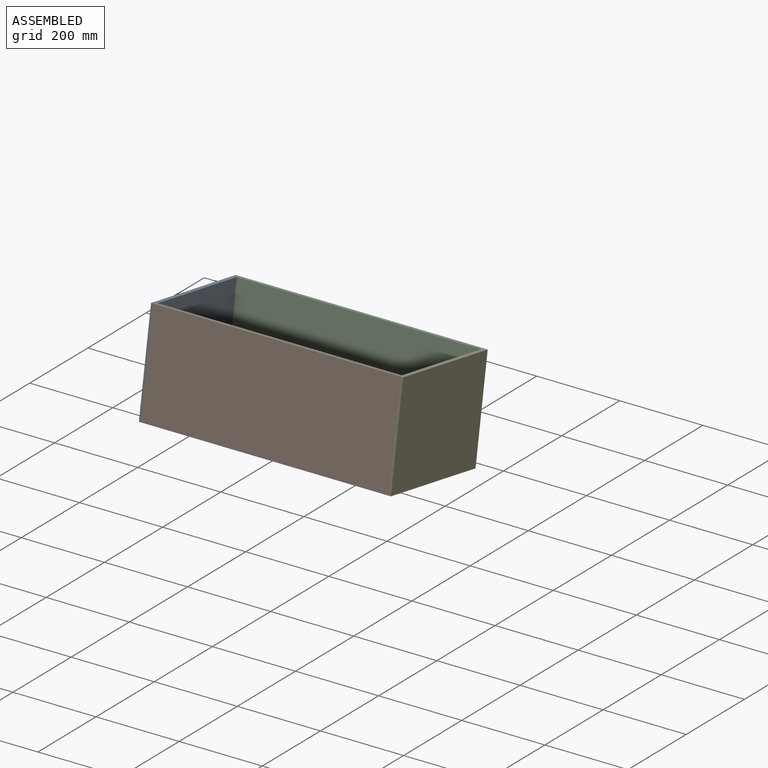
[diagram: assembled view]
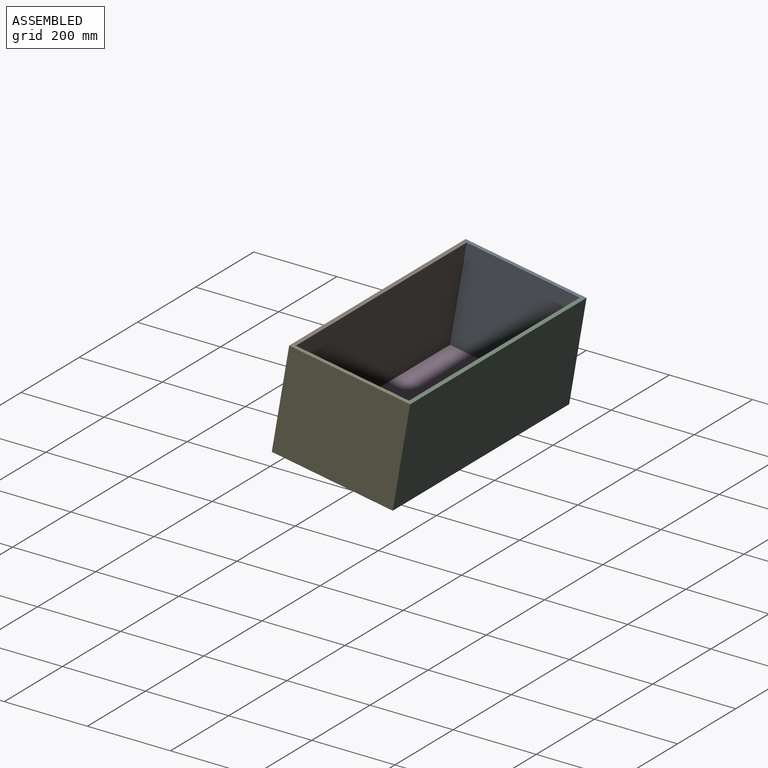
[diagram: assembled view, second angle]
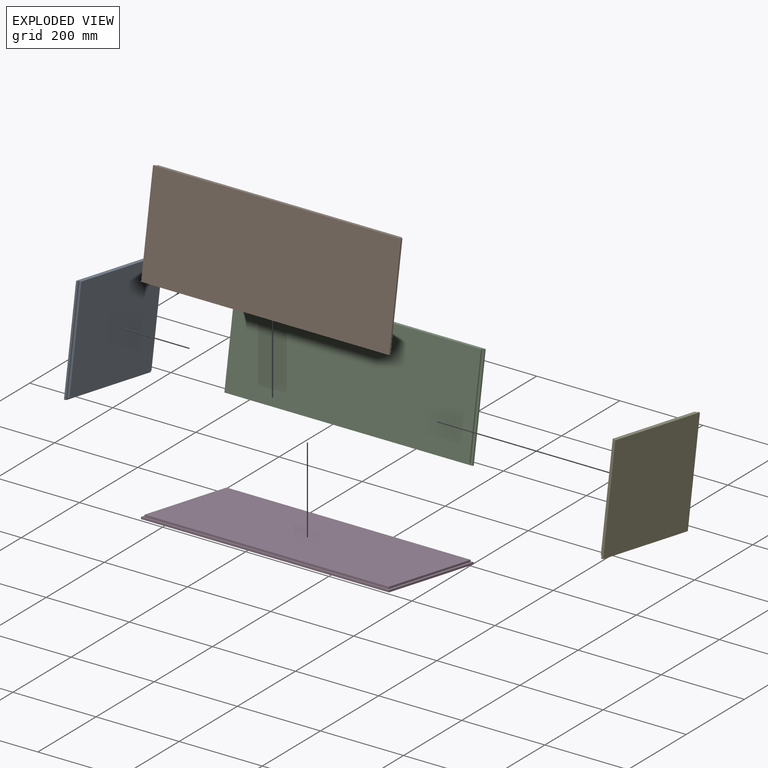
[diagram: exploded view]
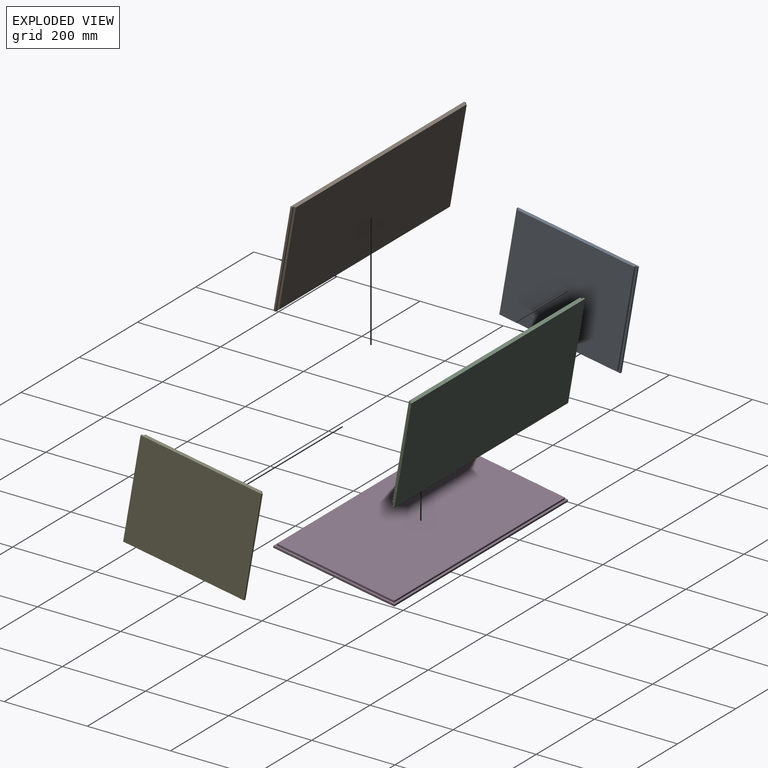
[diagram: exploded view, second angle]
ASSEMBLY  parts=5 mates=4
PART A: 10 faces, bbox 295.3x9.5x246.1 mm
  f0: plane 295.28x246.06mm, normal (0,-1,0), area 3704.6mm2, adj f1,f2,f3,f4,f6,f7,f8
  f1: plane 295.28x4.76mm, normal (0,0,-1), area 1406.2mm2, adj f0,f2,f4,f5
  f2: plane 246.06x4.76mm, normal (1,0,0), area 1171.9mm2, adj f0,f1,f3,f5
  f3: plane 295.28x9.53mm, normal (0,0,1), area 2767.1mm2, adj f0,f2,f4,f5,f6,f8,f9
  f4: plane 246.06x4.76mm, normal (-1,0,0), area 1171.9mm2, adj f0,f1,f3,f5
  f5: plane 295.28x246.06mm, normal (0,1,0), area 72656.1mm2, adj f1,f2,f3,f4
  f6: plane 241.3x4.76mm, normal (-1,0,0), area 1149.2mm2, adj f0,f3,f7,f9
  f7: plane 285.75x4.76mm, normal (0,0,-1), area 1360.9mm2, adj f0,f6,f8,f9
  f8: plane 241.3x4.76mm, normal (1,0,0), area 1149.2mm2, adj f0,f3,f7,f9
  f9: plane 285.75x241.3mm, normal (0,-1,0), area 68951.5mm2, adj f3,f6,f7,f8
PART B: 10 faces, bbox 596.9x9.5x241.3 mm
  f0: plane 596.9x241.3mm, normal (0,-1,0), area 5095.8mm2, adj f1,f2,f3,f4,f6,f7,f8
  f1: plane 596.9x4.76mm, normal (0,0,-1), area 2842.7mm2, adj f0,f2,f4,f5
  f2: plane 241.3x4.76mm, normal (1,0,0), area 1149.2mm2, adj f0,f1,f3,f5
  f3: plane 596.9x9.53mm, normal (0,0,1), area 5640.1mm2, adj f0,f2,f4,f5,f6,f8,f9
  f4: plane 241.3x4.76mm, normal (-1,0,0), area 1149.2mm2, adj f0,f1,f3,f5
  f5: plane 596.9x241.3mm, normal (0,1,0), area 144032mm2, adj f1,f2,f3,f4
  f6: plane 236.54x4.76mm, normal (-1,0,0), area 1126.5mm2, adj f0,f3,f7,f9
  f7: plane 587.38x4.76mm, normal (0,0,-1), area 2797.4mm2, adj f0,f6,f8,f9
  f8: plane 236.54x4.76mm, normal (1,0,0), area 1126.5mm2, adj f0,f3,f7,f9
  f9: plane 587.38x236.54mm, normal (0,-1,0), area 138936.2mm2, adj f3,f6,f7,f8
PART C: same geometry as B
PART D: 11 faces, bbox 596.9x9.5x295.3 mm
  f0: plane 596.9x295.28mm, normal (0,-1,0), area 8407.2mm2, adj f1,f2,f3,f4,f6,f7,f8,f9
  f1: plane 596.9x4.76mm, normal (0,0,-1), area 2842.7mm2, adj f0,f2,f4,f5
  f2: plane 295.28x4.76mm, normal (1,0,0), area 1406.2mm2, adj f0,f1,f3,f5
  f3: plane 596.9x4.76mm, normal (0,0,1), area 2842.7mm2, adj f0,f2,f4,f5
  f4: plane 295.28x4.76mm, normal (-1,0,0), area 1406.2mm2, adj f0,f1,f3,f5
  f5: plane 596.9x295.28mm, normal (0,1,0), area 176249.6mm2, adj f1,f2,f3,f4
  f6: plane 285.75x4.76mm, normal (-1,0,0), area 1360.9mm2, adj f0,f7,f9,f10
  f7: plane 587.38x4.76mm, normal (0,0,-1), area 2797.4mm2, adj f0,f6,f8,f10
  f8: plane 285.75x4.76mm, normal (1,0,0), area 1360.9mm2, adj f0,f7,f9,f10
  f9: plane 587.38x4.76mm, normal (0,0,1), area 2797.4mm2, adj f0,f6,f8,f10
  f10: plane 587.38x285.75mm, normal (0,-1,0), area 167842.4mm2, adj f6,f7,f8,f9
PART E: same geometry as A
PLACE A rot(axis=(-0.09,0.09,0.99),90.4deg) t=(-385.74,285.53,-410.77)mm
PLACE B rot(axis=(0,-0.09,-1),180deg) t=(369.31,-129.5,-383.34)mm
PLACE C rot(axis=(-1,0,0),9.8deg) t=(-534.37,161.47,-433.58)mm
PLACE D rot(axis=(-1,0,0),99.8deg) t=(0,214.7,-277.68)mm fixed
PLACE E rot(axis=(-0.09,-0.09,-0.99),90.4deg) t=(220.68,-238.73,-320.26)mm
MATE fastened D.f0 <-> B.f1  axis (0,0.17,0.99) through (-82.53,-101.01,-218.34)mm
MATE fastened D.f4 <-> A.f0  axis (-1,0,0) through (-380.98,43.67,-248.15)mm
MATE fastened D.f2 <-> E.f0  axis (1,0,0) through (215.92,43.67,-248.15)mm
MATE fastened D.f0 <-> C.f1  axis (0,0.17,0.99) through (-82.53,189.96,-268.58)mm
